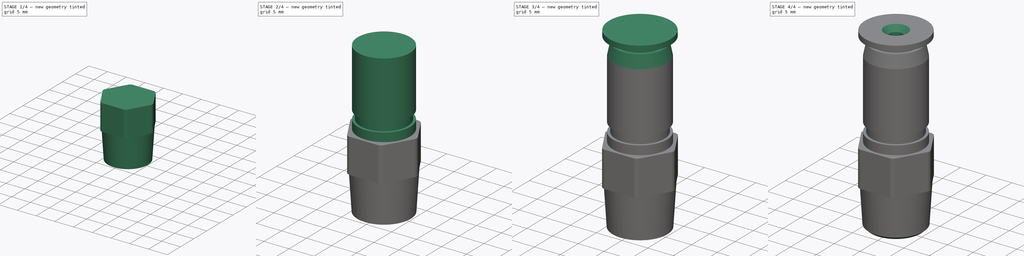
[diagram: build sequence overview — one tinted view per stage of 4, left to right]
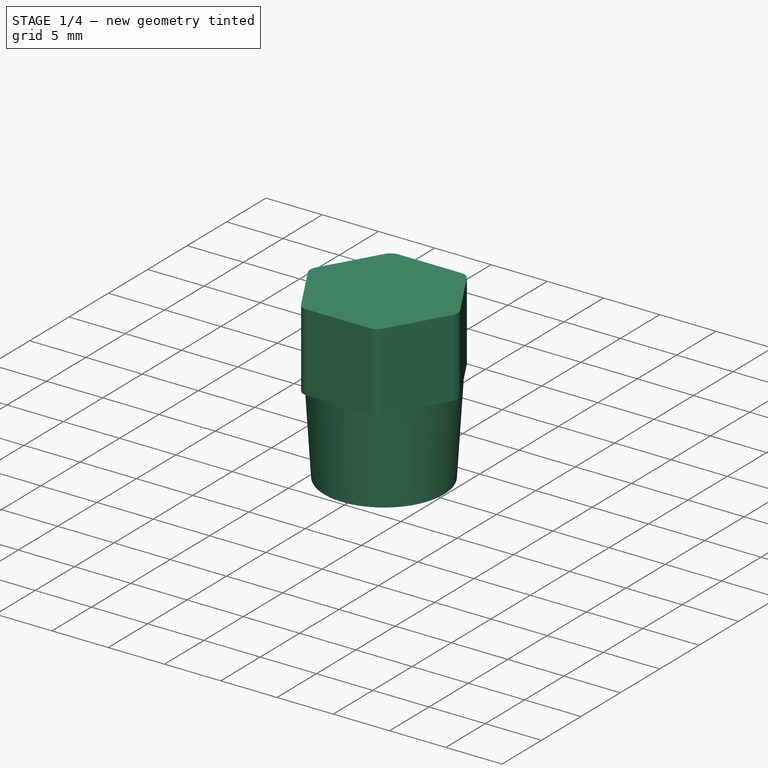
[diagram: stage 1 of 4 — iso view after this stage's code; geometry added in this stage tinted green]
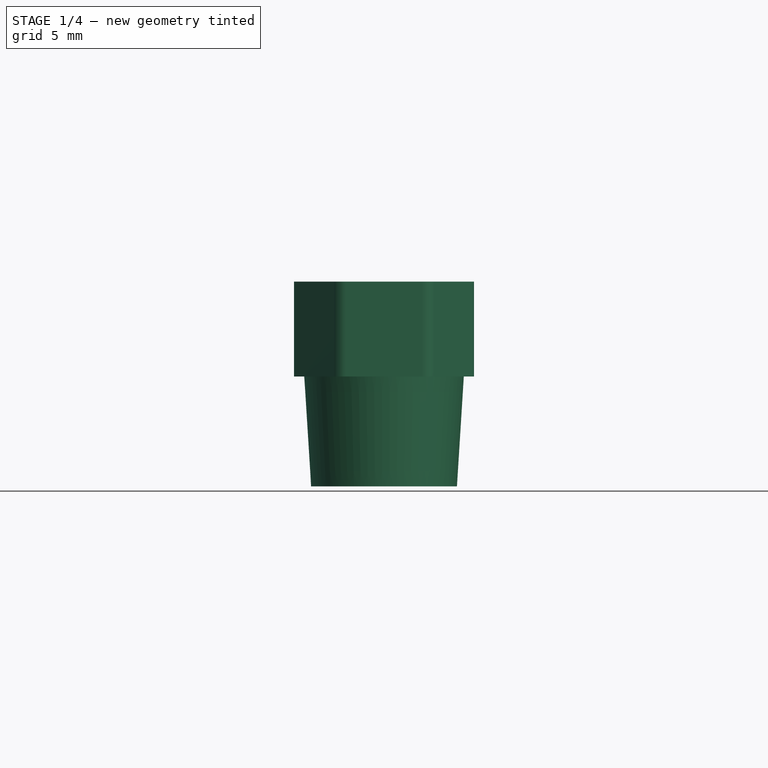
[diagram: stage 1 of 4 — front view after this stage's code; geometry added in this stage tinted green]
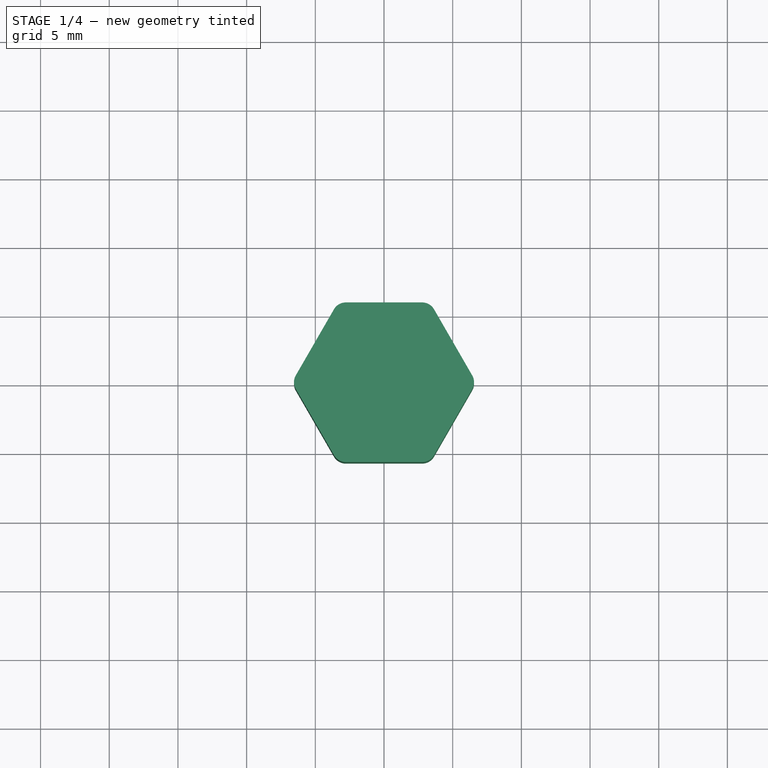
[diagram: stage 1 of 4 — top view after this stage's code; geometry added in this stage tinted green]
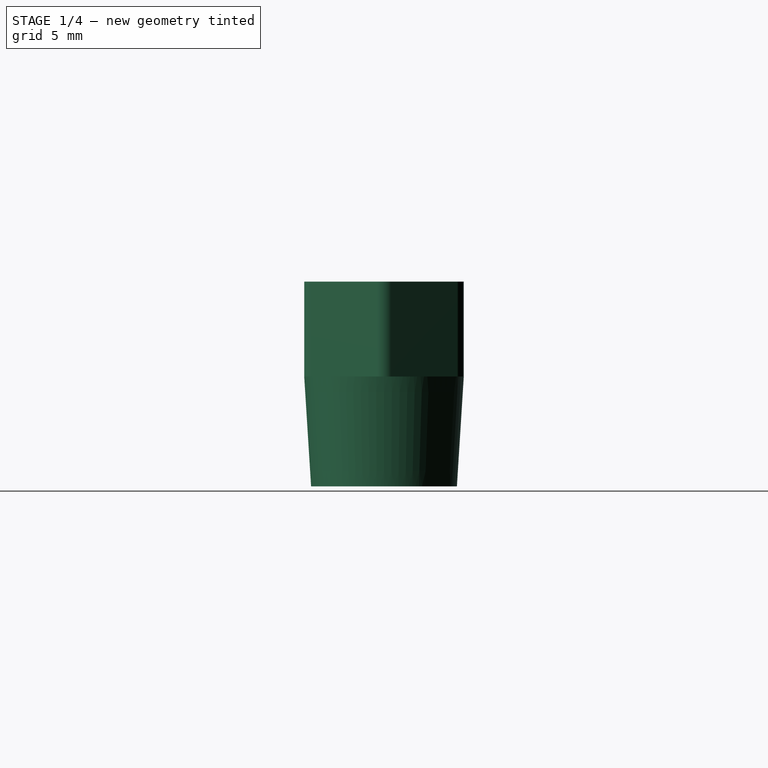
[diagram: stage 1 of 4 — right view after this stage's code; geometry added in this stage tinted green]
FCSTD DOCUMENT  (FreeCAD 0.14R3310 (Git))
Label: 80. ADAPTADOR PARA ACOPLAR EL FILAMENTO AL EXTRUSOR
License: CC-BY 3.0
LicenseURL: http://creativecommons.org/licenses/by/3.0/
objects: Sketcher::SketchObject×8, PartDesign::Pad×6, PartDesign::Chamfer×2, PartDesign::Revolution×1, Part::Cone×1, PartDesign::Fillet×1, Part::MultiFuse×1, PartDesign::Pocket×1
note: 29 computed .brp shape members not serialized (recipe doc carries the construction recipe); baked Part::Feature solids carry a one-line shape summary decoded from their .brp

FEATURE [Sketcher::SketchObject] Sketch
  Placement = pos=(0,0,0) rot=(-1,0,0;4.71239rad)
  sketch-geometry (4):
    g0: LineSegment StartX=5.30949 StartY=0 StartZ=0 EndX=5.81 EndY=8 EndZ=0
    g1: LineSegment StartX=5.81 StartY=8 StartZ=0 EndX=0 EndY=8 EndZ=0
    g2: LineSegment StartX=5.30949 StartY=0 StartZ=0 EndX=0 EndY=0 EndZ=0
    g3: LineSegment StartX=0 StartY=0 StartZ=0 EndX=0 EndY=8 EndZ=0
  constraints (11):
    c: PointOnObject(g0,g-1)
    c: Angle(g0,g-2) = 0.0624828
    c: DistanceY(g-1,g0) = 8
    c: Coincident(g1,g0)
    c: PointOnObject(g1,g-2)
    c: Horizontal(g1)
    c: DistanceX(g-2,g0) = 5.81
    c: Coincident(g2,g0)
    c: Coincident(g2,g-1)
    c: Coincident(g3,g-1)
    c: Coincident(g3,g1)
FEATURE [PartDesign::Revolution] Revolution
  Angle = 360
  Axis = (0,0,1)
  Base = (0,0,0)
  Placement = pos=(0,0,0) rot=(-1,0,0;4.71239rad)
  ReferenceAxis = -> Sketch [V_Axis]
  Reversed = true
  Sketch = -> Sketch
FEATURE [Sketcher::SketchObject] Sketch001
  ExternalGeometry = -> [Revolution]
  Placement = pos=(0,0,8) rot=(0,0,1;3.14159rad)
  Support = -> Revolution [Face2]
  sketch-geometry (6):
    g0: LineSegment StartX=-3.35441 StartY=5.81 StartZ=0 EndX=3.35441 EndY=5.81 EndZ=0
    g1: LineSegment StartX=3.35441 StartY=5.81 StartZ=0 EndX=6.70881 EndY=0 EndZ=0
    g2: LineSegment StartX=6.70881 StartY=0 StartZ=0 EndX=3.35441 EndY=-5.81 EndZ=0
    g3: LineSegment StartX=3.35441 StartY=-5.81 StartZ=0 EndX=-3.35441 EndY=-5.81 EndZ=0
    g4: LineSegment StartX=-3.35441 StartY=-5.81 StartZ=0 EndX=-6.70881 EndY=0 EndZ=0
    g5: LineSegment StartX=-6.70881 StartY=0 StartZ=0 EndX=-3.35441 EndY=5.81 EndZ=0
  constraints (18):
    c: Horizontal(g0)
    c: Coincident(g0,g1)
    c: PointOnObject(g1,g-1)
    c: Coincident(g1,g2)
    c: Coincident(g2,g3)
    c: Coincident(g3,g4)
    c: PointOnObject(g4,g-1)
    c: Coincident(g4,g5)
    c: Coincident(g5,g0)
    c: Horizontal(g3)
    c: Equal(g4,g5)
    c: Equal(g5,g0)
    c: Equal(g0,g1)
    c: Equal(g1,g2)
    c: Equal(g2,g3)
    c: Angle(g3,g4) = 2.0944
    c: Tangent(g2,g-3)
    c: Tangent(g5,g-3)
FEATURE [PartDesign::Pad] Pad
  Length = 6.9
  Length2 = 100
  Placement = pos=(0,0,0) rot=(-1,0,0;4.71239rad)
  Sketch = -> Sketch001
  Type = 0
FEATURE [PartDesign::Fillet] Fillet
  Base = -> Pad [Edge28,Edge30,Edge32,Edge26,Edge24,Edge22]
  Placement = pos=(0,0,0) rot=(-1,0,0;4.71239rad)
  Radius = 1
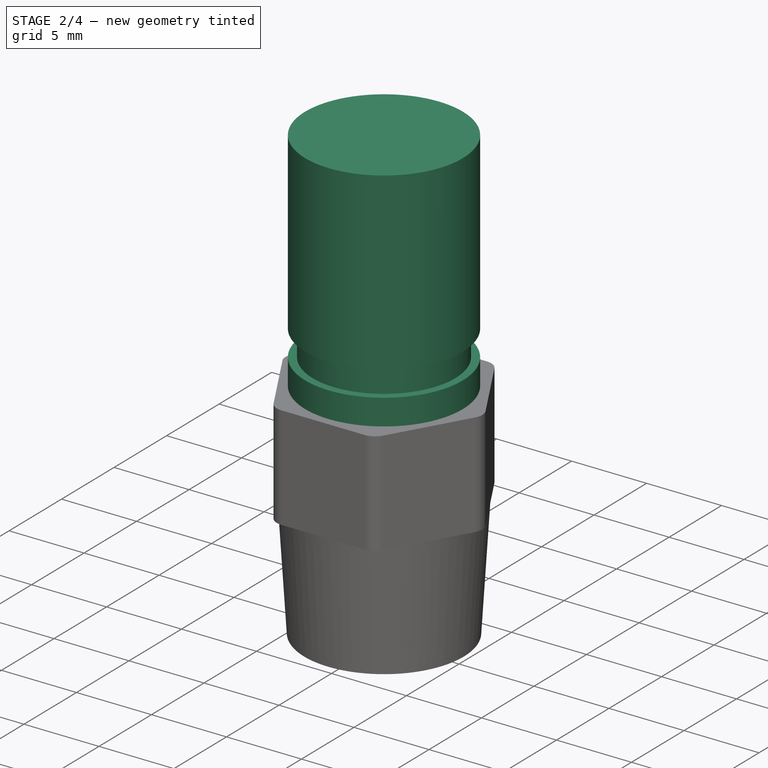
[diagram: stage 2 of 4 — iso view after this stage's code; geometry added in this stage tinted green]
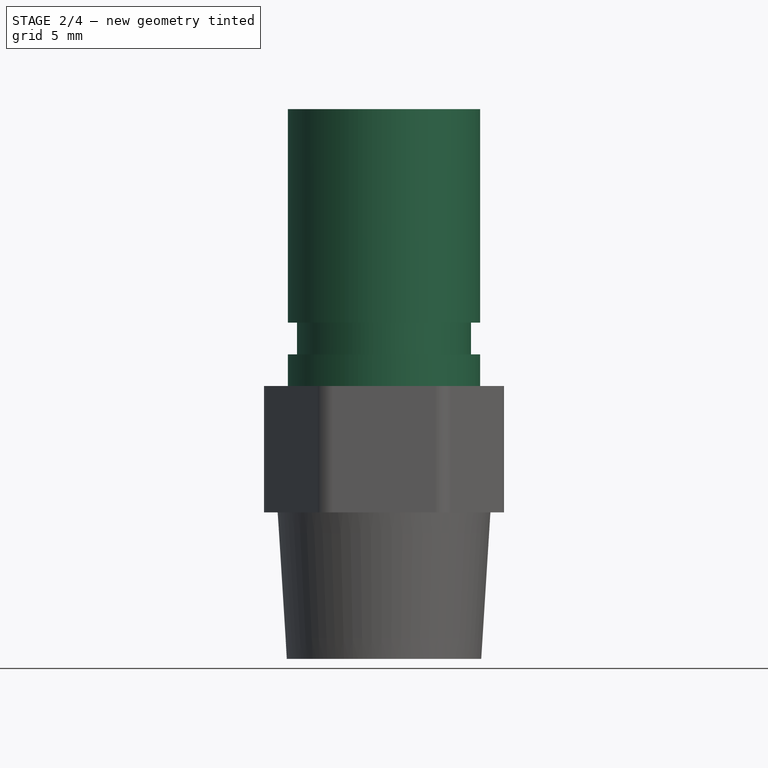
[diagram: stage 2 of 4 — front view after this stage's code; geometry added in this stage tinted green]
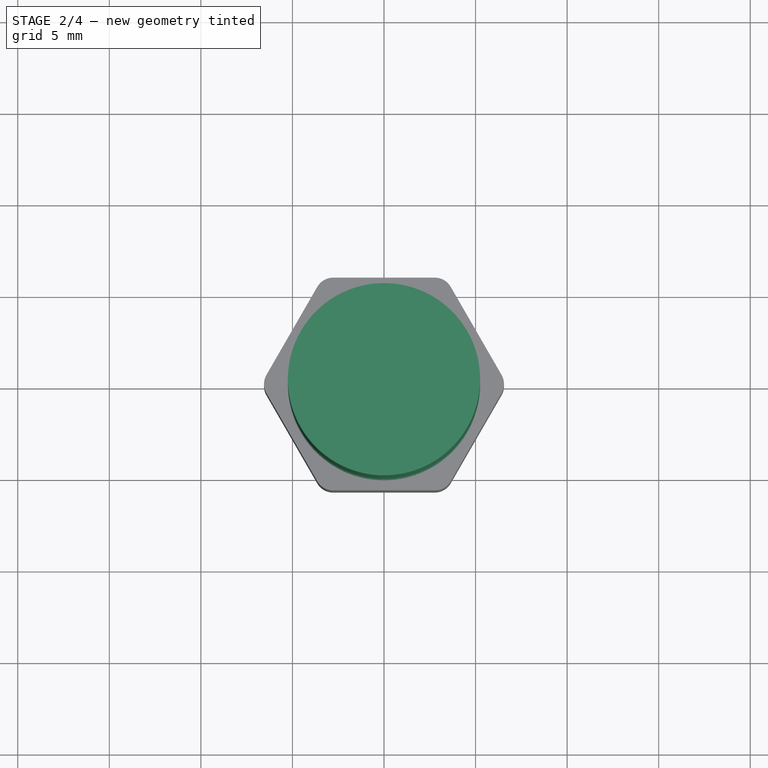
[diagram: stage 2 of 4 — top view after this stage's code; geometry added in this stage tinted green]
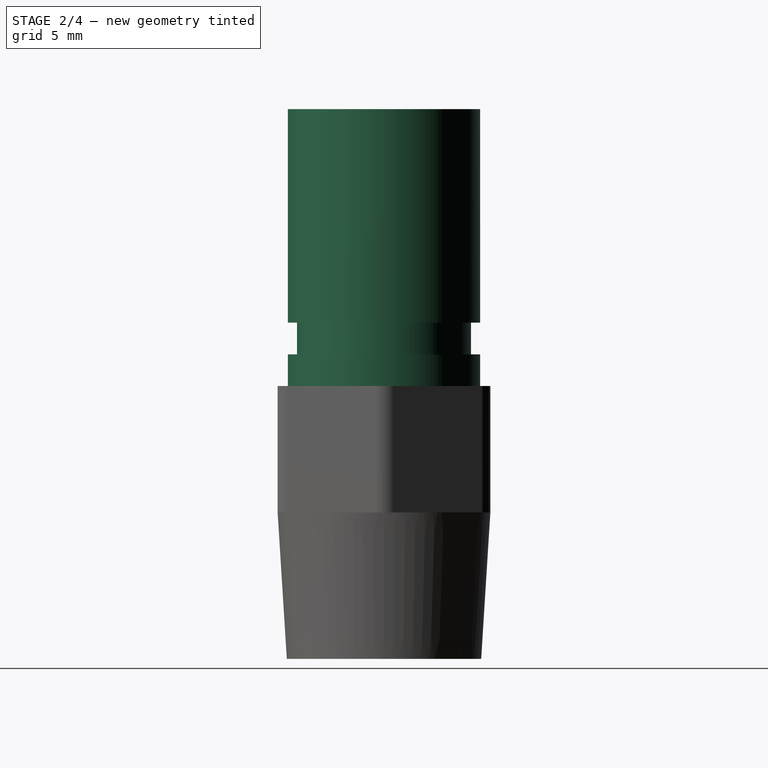
[diagram: stage 2 of 4 — right view after this stage's code; geometry added in this stage tinted green]
FEATURE [Sketcher::SketchObject] Sketch002
  Placement = pos=(0,0,14.9) rot=(0,0,1;3.14159rad)
  Support = -> Fillet [Face8]
  sketch-geometry (1):
    g0: Circle CenterX=0 CenterY=0 CenterZ=0 NormalX=0 NormalY=0 NormalZ=1 Radius=5.25
  constraints (2):
    c: Coincident(g0,g-1)
    c: Radius(g0) = 5.25
FEATURE [PartDesign::Pad] Pad001
  Length = 1.73
  Length2 = 100
  Placement = pos=(0,0,0) rot=(-1,0,0;4.71239rad)
  Sketch = -> Sketch002
  Type = 0
FEATURE [Sketcher::SketchObject] Sketch003
  Placement = pos=(0,0,16.63) rot=(0,0,1;3.14159rad)
  Support = -> Pad001 [Face1]
  sketch-geometry (1):
    g0: Circle CenterX=0 CenterY=0 CenterZ=0 NormalX=0 NormalY=0 NormalZ=1 Radius=4.75
  constraints (2):
    c: Coincident(g0,g-1)
    c: Radius(g0) = 4.75
FEATURE [PartDesign::Pad] Pad002
  Length = 1.73
  Length2 = 100
  Placement = pos=(0,0,0) rot=(-1,0,0;4.71239rad)
  Sketch = -> Sketch003
  Type = 0
FEATURE [Sketcher::SketchObject] Sketch004
  Placement = pos=(0,0,18.36) rot=(0,0,1;3.14159rad)
  Support = -> Pad002 [Face23]
  sketch-geometry (1):
    g0: Circle CenterX=0 CenterY=0 CenterZ=0 NormalX=0 NormalY=0 NormalZ=1 Radius=5.25
  constraints (2):
    c: Coincident(g0,g-1)
    c: Radius(g0) = 5.25
FEATURE [PartDesign::Pad] Pad003
  Length = 11.66
  Length2 = 100
  Placement = pos=(0,0,0) rot=(-1,0,0;4.71239rad)
  Sketch = -> Sketch004
  Type = 0
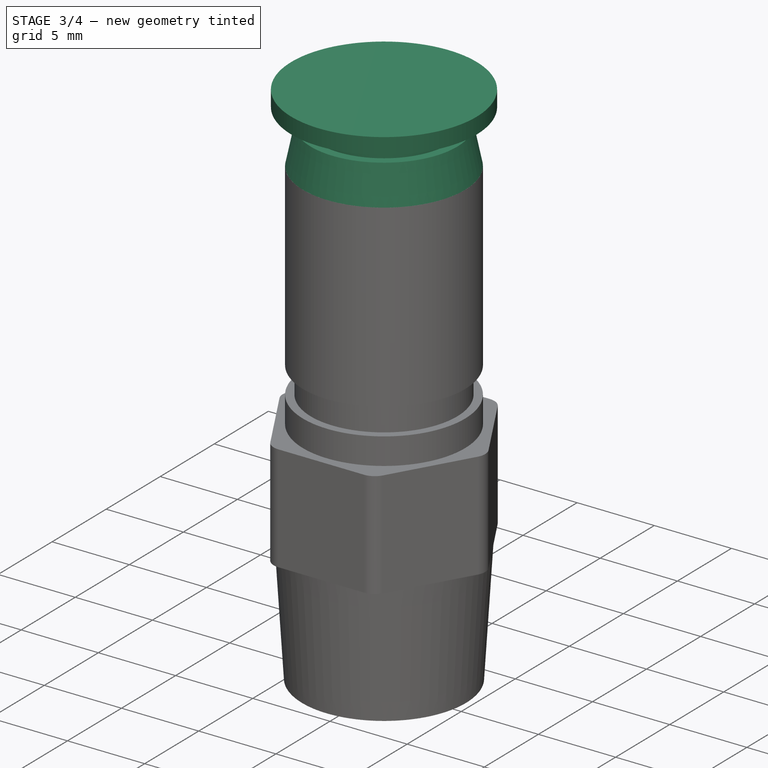
[diagram: stage 3 of 4 — iso view after this stage's code; geometry added in this stage tinted green]
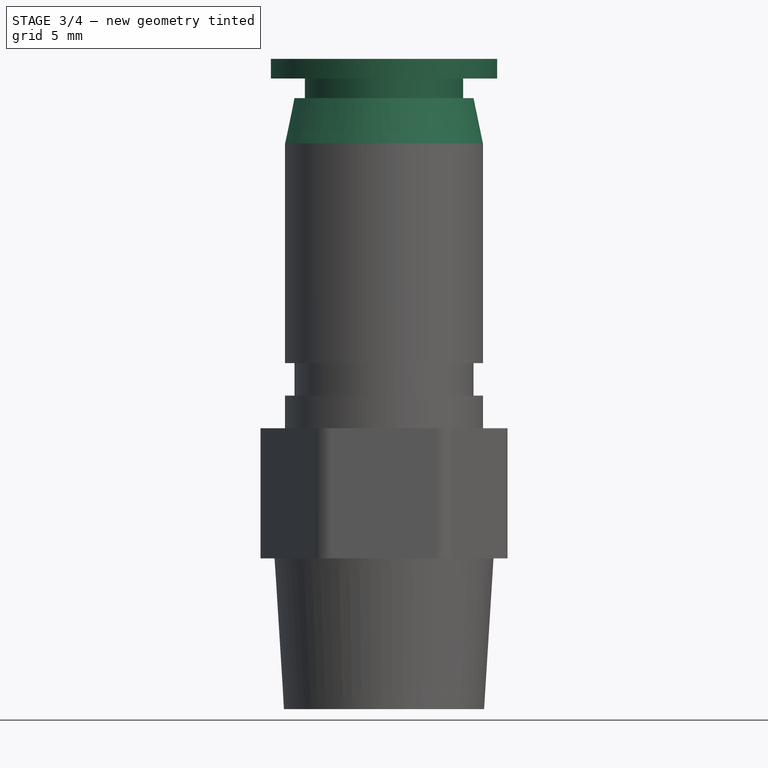
[diagram: stage 3 of 4 — front view after this stage's code; geometry added in this stage tinted green]
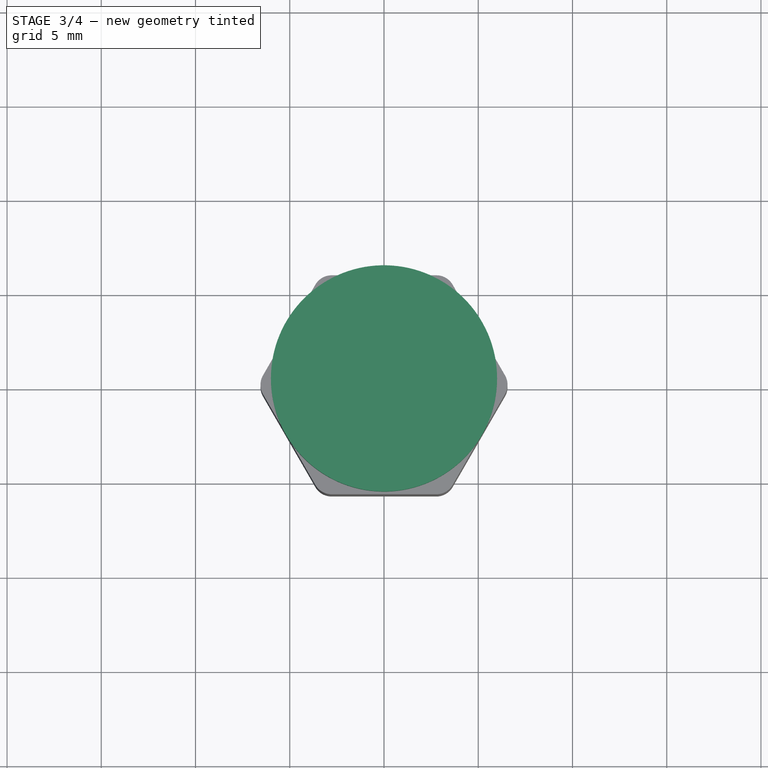
[diagram: stage 3 of 4 — top view after this stage's code; geometry added in this stage tinted green]
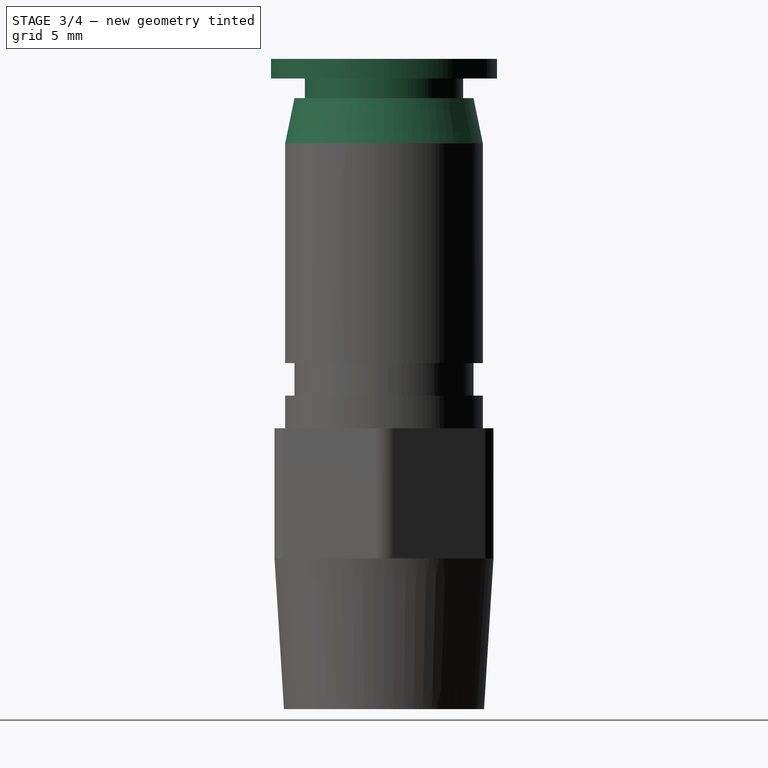
[diagram: stage 3 of 4 — right view after this stage's code; geometry added in this stage tinted green]
FEATURE [Part::Cone] Cone  label="Cono"
  Angle = 360
  Height = 2.42
  Placement = pos=(0,0,30) rot=(0,0,1;0rad)
  Radius1 = 5.25
  Radius2 = 4.75
FEATURE [Part::MultiFuse] Fusion
  Shapes = -> [Pad003,Cone]
FEATURE [Sketcher::SketchObject] Sketch005
  Placement = pos=(0,0,32.42) rot=(0,0,1;0rad)
  Support = -> Fusion [Face29]
  sketch-geometry (1):
    g0: Circle CenterX=0 CenterY=0 CenterZ=0 NormalX=0 NormalY=0 NormalZ=1 Radius=4.2
  constraints (2):
    c: Coincident(g0,g-1)
    c: Radius(g0) = 4.2
FEATURE [PartDesign::Pad] Pad004
  Length = 1.04
  Length2 = 100
  Sketch = -> Sketch005
  Type = 0
FEATURE [Sketcher::SketchObject] Sketch006
  Placement = pos=(0,0,33.46) rot=(0,0,1;0rad)
  Support = -> Pad004 [Face1]
  sketch-geometry (1):
    g0: Circle CenterX=0 CenterY=0 CenterZ=0 NormalX=0 NormalY=0 NormalZ=1 Radius=6
  constraints (2):
    c: Coincident(g0,g-1)
    c: Radius(g0) = 6
FEATURE [PartDesign::Pad] Pad005
  Length = 1.04
  Length2 = 100
  Sketch = -> Sketch006
  Type = 0
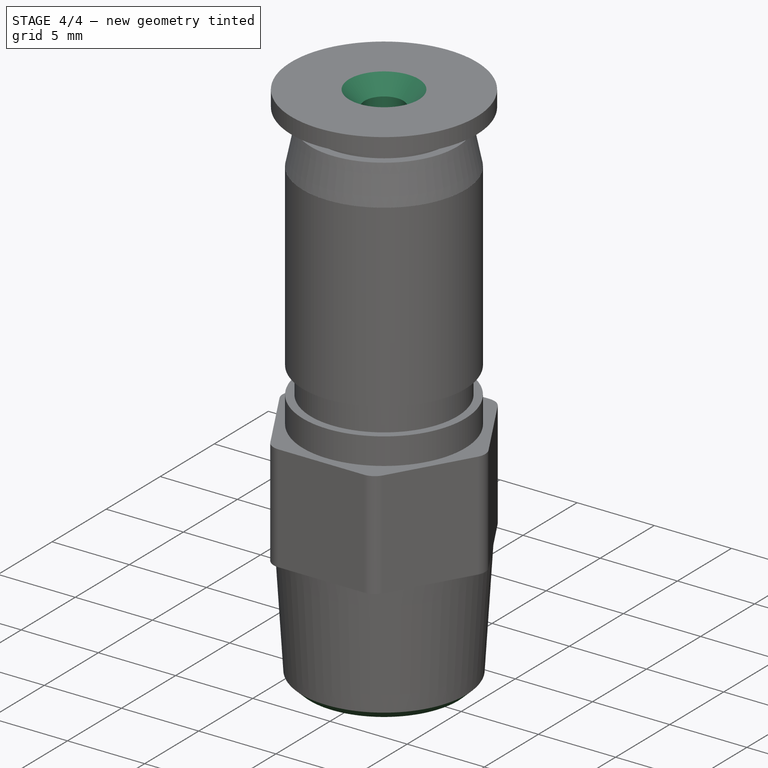
[diagram: stage 4 of 4 — iso view after this stage's code; geometry added in this stage tinted green]
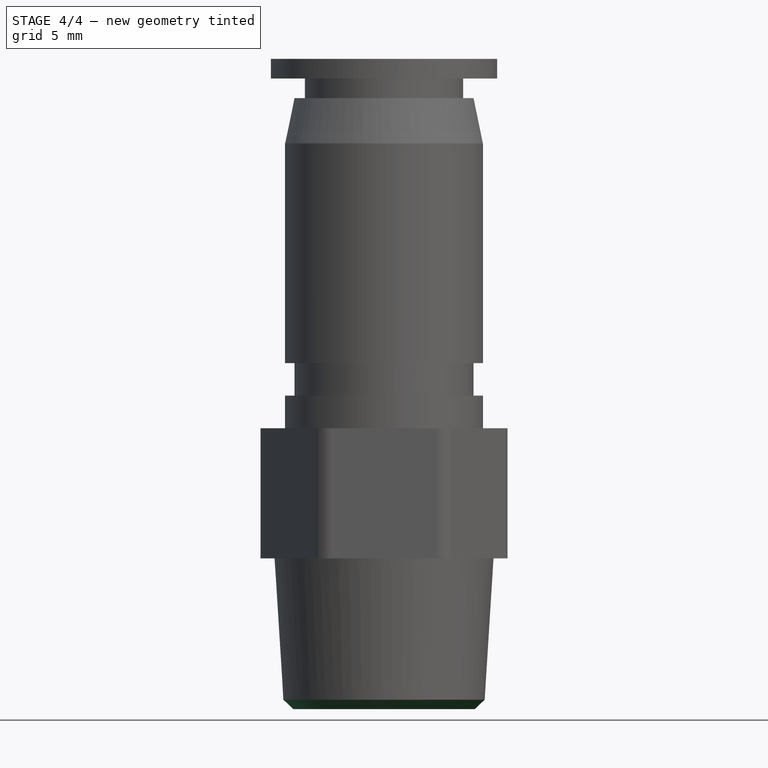
[diagram: stage 4 of 4 — front view after this stage's code; geometry added in this stage tinted green]
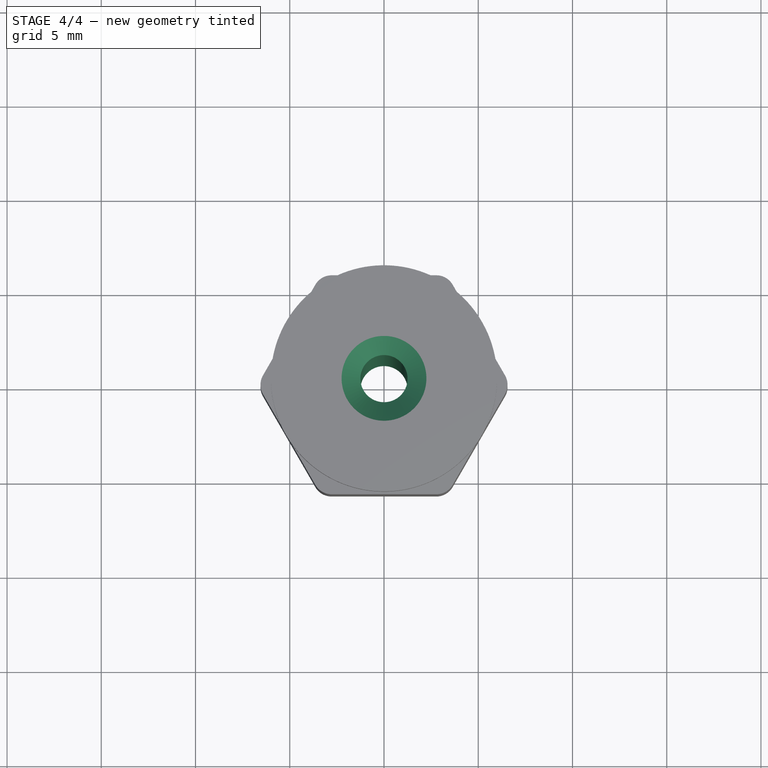
[diagram: stage 4 of 4 — top view after this stage's code; geometry added in this stage tinted green]
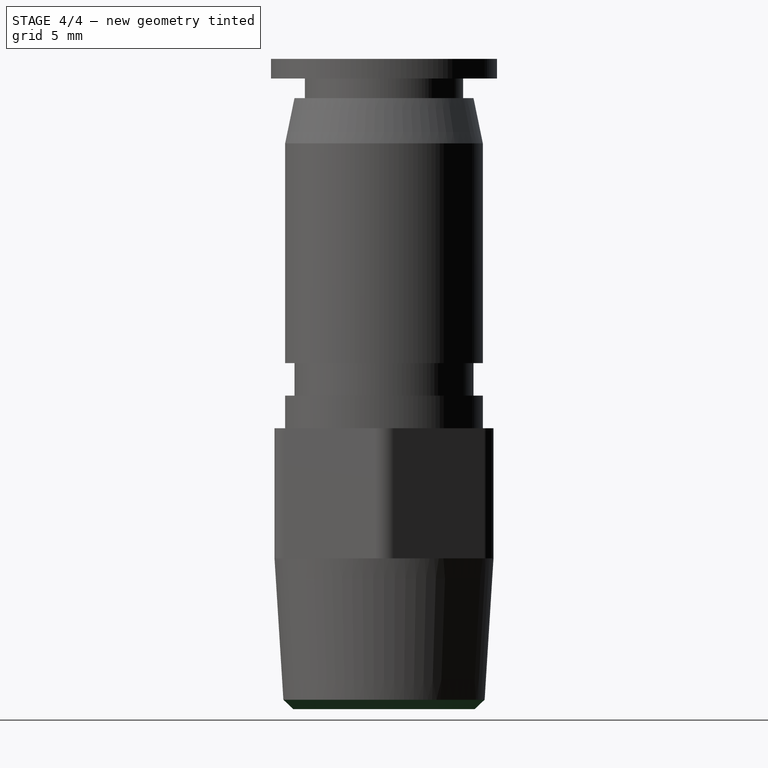
[diagram: stage 4 of 4 — right view after this stage's code; geometry added in this stage tinted green]
FEATURE [Sketcher::SketchObject] Sketch007
  Placement = pos=(0,0,34.5) rot=(0,0,1;0rad)
  Support = -> Pad005 [Face9]
  sketch-geometry (1):
    g0: Circle CenterX=0 CenterY=0 CenterZ=0 NormalX=0 NormalY=0 NormalZ=1 Radius=1.25
  constraints (2):
    c: Coincident(g0,g-1)
    c: Radius(g0) = 1.25
FEATURE [PartDesign::Pocket] Pocket
  Length = 5
  Sketch = -> Sketch007
  Type = 1
FEATURE [PartDesign::Chamfer] Chamfer
  Base = -> Pocket [Edge14]
  Size = 1
FEATURE [PartDesign::Chamfer] Chamfer001
  Base = -> Chamfer [Edge10]
  Size = 0.5
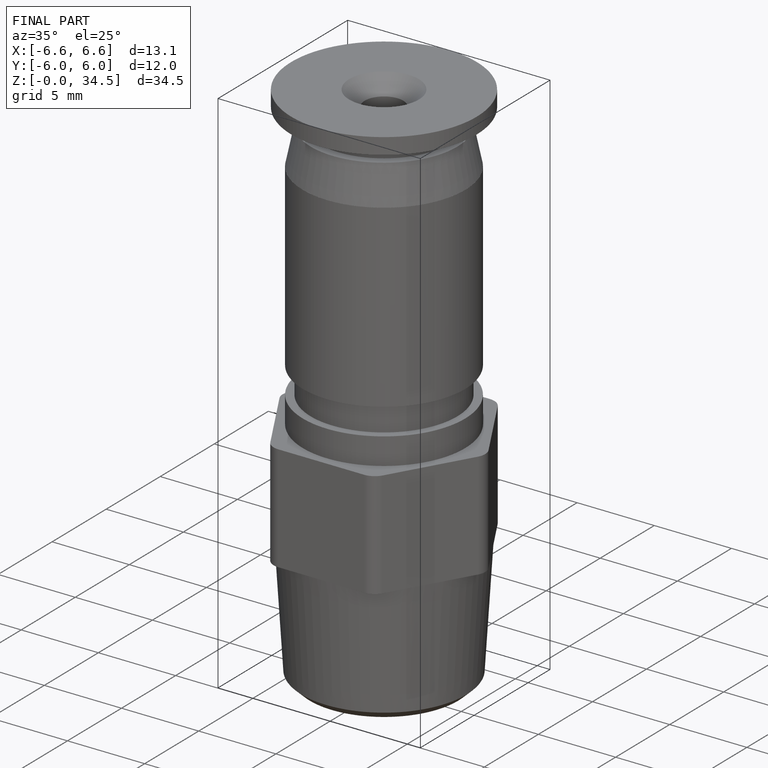
[diagram: finished part — iso view with bounding-box wireframe]
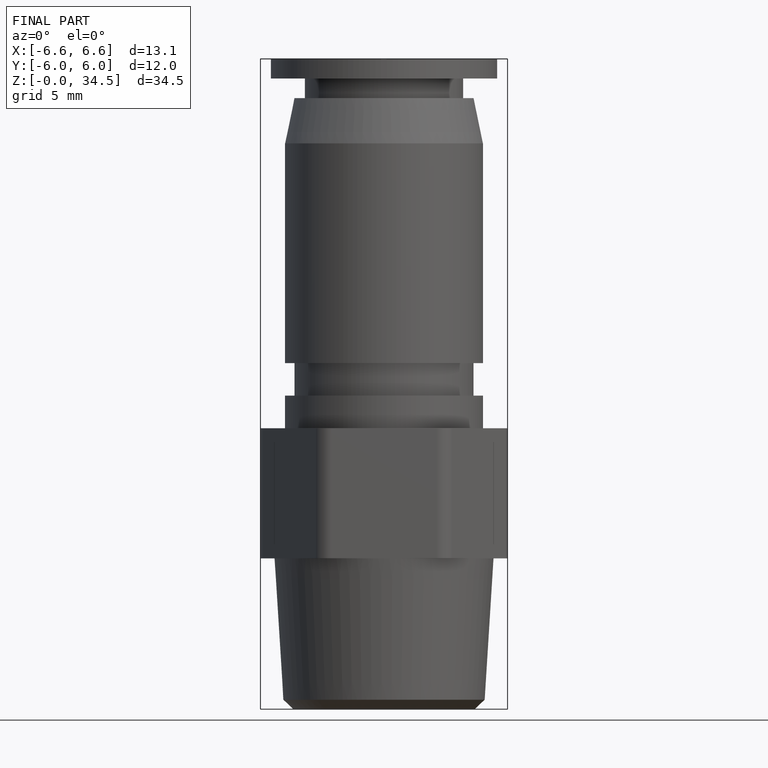
[diagram: finished part — front view with bounding-box wireframe]
